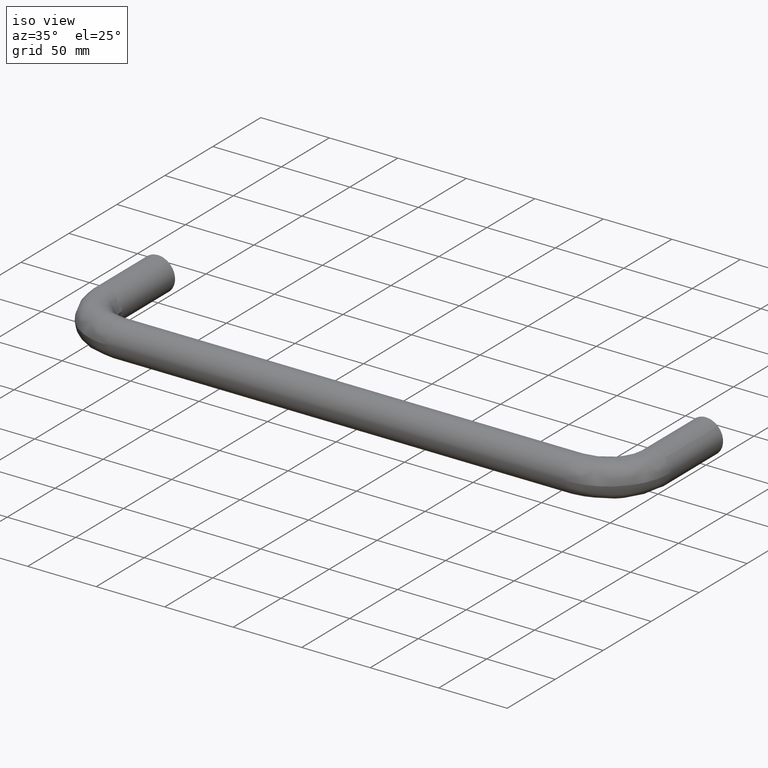
[diagram: clean part render]
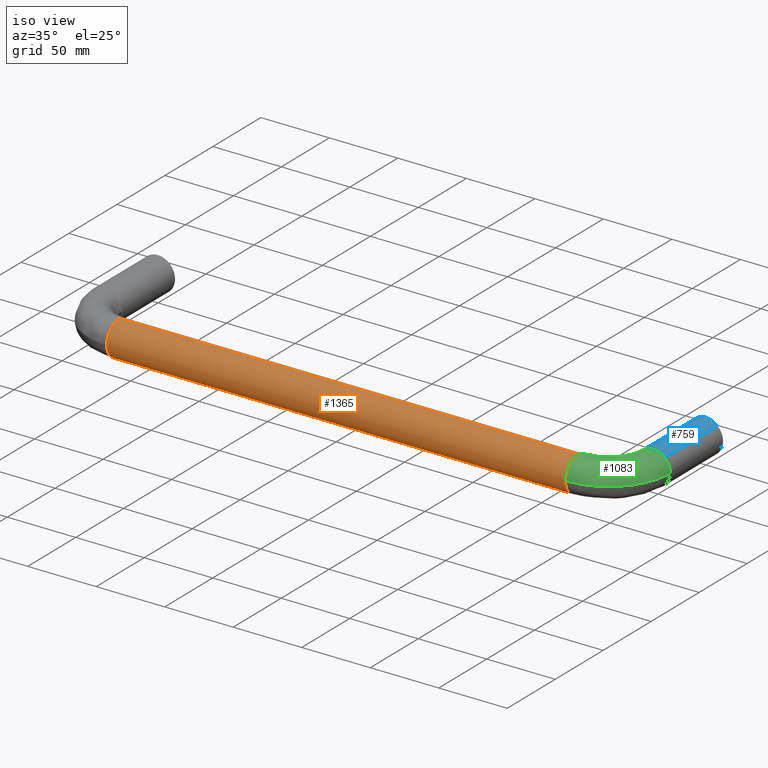
[diagram: same view with three faces highlighted in distinct colors, each labeled with its STEP entity id]
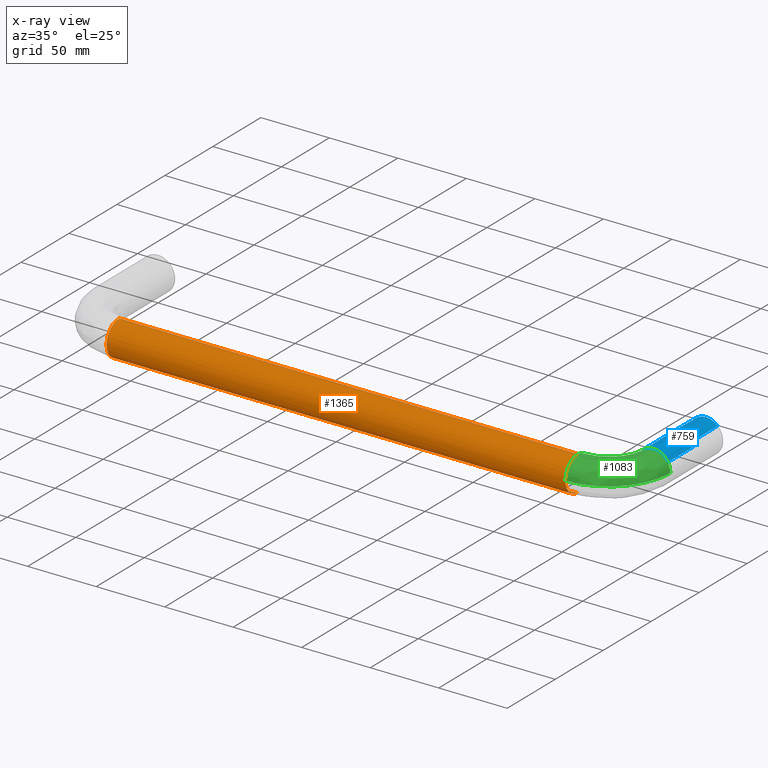
[diagram: x-ray of the same camera — body ghosted, the three highlighted faces saturated]
A machine part, iso view with three faces highlighted in distinct colors.
The next image is the same camera in x-ray (body ghosted, the three faces saturated) — at least one of them is partly hidden behind the body in this view.
Their STEP definitions:

[orange] entity #1365 — the highlighted face is a freeform B-spline surface patch.
#1005=CARTESIAN_POINT('',(367.500000000913420,-99.999999999999972,-1.530758E-015));
#1006=VERTEX_POINT('',#1005);
#1038=CARTESIAN_POINT('',(367.500000000002220,-86.736891903897558,12.476684897586420));
#1039=VERTEX_POINT('',#1038);
#1053=CARTESIAN_POINT('',(367.500000000000000,-87.500000000000000,12.500000000000000));
#1054=VERTEX_POINT('',#1053);
#1055=CARTESIAN_POINT('',(367.500000000002100,-86.736891903897558,12.476684897586491));
#1056=CARTESIAN_POINT('',(367.500000000001020,-87.118089780913948,12.500000000000005));
#1057=CARTESIAN_POINT('',(367.500000000000000,-87.500000000000000,12.500000000000000));
#1065=(BOUNDED_CURVE()B_SPLINE_CURVE(2,(#1055,#1056,#1057),.UNSPECIFIED.,.F.,.U.)B_SPLINE_CURVE_WITH_KNOTS((3,3),(0.985777258060780,1.0),.UNSPECIFIED.)CURVE()GEOMETRIC_REPRESENTATION_ITEM()RATIONAL_B_SPLINE_CURVE((0.976072001603296,0.987502765999206,1.0))REPRESENTATION_ITEM(''));
#1066=EDGE_CURVE('',#1039,#1054,#1065,.T.);
#1068=CARTESIAN_POINT('',(367.500000000000000,-87.500000000000000,12.500000000000000));
#1069=CARTESIAN_POINT('',(367.500000000456620,-99.999999999999986,12.499999999999998));
#1070=CARTESIAN_POINT('',(367.500000000913420,-99.999999999999972,-1.530758E-015));
#1078=(BOUNDED_CURVE()B_SPLINE_CURVE(2,(#1068,#1069,#1070),.UNSPECIFIED.,.F.,.U.)CURVE()GEOMETRIC_REPRESENTATION_ITEM()QUASI_UNIFORM_CURVE()RATIONAL_B_SPLINE_CURVE((1.0,0.707106781186547,1.0))REPRESENTATION_ITEM(''));
#1079=EDGE_CURVE('',#1054,#1006,#1078,.T.);
#1114=CARTESIAN_POINT('',(367.500000000516020,-88.263108096102457,-12.476684897586420));
#1115=VERTEX_POINT('',#1114);
#1116=CARTESIAN_POINT('',(367.500000000913420,-99.999999999999972,-1.530758E-015));
#1117=CARTESIAN_POINT('',(367.500000000913300,-99.999999999999986,-11.758824559807481));
#1118=CARTESIAN_POINT('',(367.500000000516080,-88.263108096102457,-12.476684897586493));
#1126=(BOUNDED_CURVE()B_SPLINE_CURVE(2,(#1116,#1117,#1118),.UNSPECIFIED.,.F.,.U.)B_SPLINE_CURVE_WITH_KNOTS((3,3),(0.0,0.319110591394112),.UNSPECIFIED.)CURVE()GEOMETRIC_REPRESENTATION_ITEM()RATIONAL_B_SPLINE_CURVE((1.0,0.719604015187342,0.976072001603295))REPRESENTATION_ITEM(''));
#1127=EDGE_CURVE('',#1006,#1115,#1126,.T.);
#1285=CARTESIAN_POINT('',(24.124999998774101,-86.736893255814309,12.476684980273340));
#1286=CARTESIAN_POINT('',(24.124999998774104,-99.213578236087642,13.239791724459032));
#1287=CARTESIAN_POINT('',(24.124999998774101,-99.976684980273333,0.763106744185696));
#1288=CARTESIAN_POINT('',(24.124999998774104,-100.739791724459040,-11.713578236087638));
#1289=CARTESIAN_POINT('',(24.124999998774101,-88.263106744185691,-12.476684980273340));
#1290=CARTESIAN_POINT('',(376.084375000966870,-86.736893255814309,12.476684980273340));
#1291=CARTESIAN_POINT('',(376.084375000966870,-99.213578236087642,13.239791724459032));
#1292=CARTESIAN_POINT('',(376.084375000966870,-99.976684980273333,0.763106744185696));
#1293=CARTESIAN_POINT('',(376.084375000966870,-100.739791724459040,-11.713578236087638));
#1294=CARTESIAN_POINT('',(376.084375000966870,-88.263106744185691,-12.476684980273340));
#1302=(BOUNDED_SURFACE()B_SPLINE_SURFACE(2,1,((#1285,#1290),(#1286,#1291),(#1287,#1292),(#1288,#1293),(#1289,#1294)),.UNSPECIFIED.,.F.,.F.,.U.)B_SPLINE_SURFACE_WITH_KNOTS((3,2,3),(2,2),(0.0,20.710678118654752,41.421356237309503),(0.0,351.959375002192810),.UNSPECIFIED.)GEOMETRIC_REPRESENTATION_ITEM()RATIONAL_B_SPLINE_SURFACE(((1.0,1.0),(0.707106781186548,0.707106781186548),(1.0,1.0),(0.707106781186548,0.707106781186548),(1.0,1.0)))REPRESENTATION_ITEM('')SURFACE());
#1303=ORIENTED_EDGE('',*,*,#1066,.F.);
#1304=CARTESIAN_POINT('',(32.499999999963080,-86.736891903897558,12.476684897586420));
#1305=VERTEX_POINT('',#1304);
#1306=CARTESIAN_POINT('',(32.499999999963080,-86.736891903897558,12.476684897586420));
#1307=CARTESIAN_POINT('',(367.500000000002220,-86.736891903897558,12.476684897586420));
#1308=QUASI_UNIFORM_CURVE('',1,(#1306,#1307),.UNSPECIFIED.,.F.,.U.);
#1309=EDGE_CURVE('',#1305,#1039,#1308,.T.);
#1310=ORIENTED_EDGE('',*,*,#1309,.F.);
#1311=CARTESIAN_POINT('',(32.500000000000000,-87.500000000000000,12.500000000000000));
#1312=VERTEX_POINT('',#1311);
#1313=CARTESIAN_POINT('',(32.499999999963066,-86.736891903897558,12.476684897586491));
#1314=CARTESIAN_POINT('',(32.499999999982066,-87.118089780913948,12.500000000000005));
#1315=CARTESIAN_POINT('',(32.500000000000000,-87.500000000000000,12.500000000000000));
#1323=(BOUNDED_CURVE()B_SPLINE_CURVE(2,(#1313,#1314,#1315),.UNSPECIFIED.,.F.,.U.)B_SPLINE_CURVE_WITH_KNOTS((3,3),(0.985777258060780,1.0),.UNSPECIFIED.)CURVE()GEOMETRIC_REPRESENTATION_ITEM()RATIONAL_B_SPLINE_CURVE((0.976072001603296,0.987502765999206,1.0))REPRESENTATION_ITEM(''));
#1324=EDGE_CURVE('',#1305,#1312,#1323,.T.);
#1325=ORIENTED_EDGE('',*,*,#1324,.T.);
#1326=CARTESIAN_POINT('',(32.500032146005097,-99.999999999977035,-1.530758E-015));
#1327=VERTEX_POINT('',#1326);
#1328=CARTESIAN_POINT('',(32.500000000000000,-87.500000000000000,12.500000000000000));
#1329=CARTESIAN_POINT('',(32.500016073002548,-99.999999999988518,12.499999999999998));
#1330=CARTESIAN_POINT('',(32.500032146005097,-99.999999999977035,-1.530758E-015));
#1338=(BOUNDED_CURVE()B_SPLINE_CURVE(2,(#1328,#1329,#1330),.UNSPECIFIED.,.F.,.U.)CURVE()GEOMETRIC_REPRESENTATION_ITEM()QUASI_UNIFORM_CURVE()RATIONAL_B_SPLINE_CURVE((1.0,0.707106781186547,1.0))REPRESENTATION_ITEM(''));
#1339=EDGE_CURVE('',#1312,#1327,#1338,.T.);
#1340=ORIENTED_EDGE('',*,*,#1339,.T.);
#1341=CARTESIAN_POINT('',(32.500017053687827,-88.263108096102428,-12.476684897586050));
#1342=VERTEX_POINT('',#1341);
#1343=CARTESIAN_POINT('',(32.500032146005097,-99.999999999977035,-1.530758E-015));
#1344=CARTESIAN_POINT('',(32.500032146005104,-99.999999999977021,-11.758824559796043));
#1345=CARTESIAN_POINT('',(32.500017053686584,-88.263108096102414,-12.476684897585754));
#1353=(BOUNDED_CURVE()B_SPLINE_CURVE(2,(#1343,#1344,#1345),.UNSPECIFIED.,.F.,.U.)B_SPLINE_CURVE_WITH_KNOTS((3,3),(0.0,0.319110591393889),.UNSPECIFIED.)CURVE()GEOMETRIC_REPRESENTATION_ITEM()RATIONAL_B_SPLINE_CURVE((1.0,0.719604015187538,0.976072001602936))REPRESENTATION_ITEM(''));
#1354=EDGE_CURVE('',#1327,#1342,#1353,.T.);
#1355=ORIENTED_EDGE('',*,*,#1354,.T.);
#1356=CARTESIAN_POINT('',(32.500017053687827,-88.263108096102428,-12.476684897586050));
#1357=CARTESIAN_POINT('',(367.500000000516020,-88.263108096102457,-12.476684897586420));
#1358=QUASI_UNIFORM_CURVE('',1,(#1356,#1357),.UNSPECIFIED.,.F.,.U.);
#1359=EDGE_CURVE('',#1342,#1115,#1358,.T.);
#1360=ORIENTED_EDGE('',*,*,#1359,.T.);
#1361=ORIENTED_EDGE('',*,*,#1127,.F.);
#1362=ORIENTED_EDGE('',*,*,#1079,.F.);
#1363=EDGE_LOOP('',(#1303,#1310,#1325,#1340,#1355,#1360,#1361,#1362));
#1364=FACE_OUTER_BOUND('',#1363,.T.);
#1365=ADVANCED_FACE('',(#1364),#1302,.T.);

[blue] entity #759 — the highlighted face is a freeform B-spline surface patch.
#412=CARTESIAN_POINT('',(400.0,0.0,12.500000000000000));
#413=VERTEX_POINT('',#412);
#414=CARTESIAN_POINT('',(408.604430780848470,-2.886580E-015,9.067180980745007));
#415=VERTEX_POINT('',#414);
#416=CARTESIAN_POINT('',(400.0,0.0,12.500000000000000));
#417=CARTESIAN_POINT('',(404.986993193808300,0.0,12.499999999999995));
#418=CARTESIAN_POINT('',(408.604430780848590,0.0,9.067180980745148));
#426=(BOUNDED_CURVE()B_SPLINE_CURVE(2,(#416,#417,#418),.UNSPECIFIED.,.F.,.U.)B_SPLINE_CURVE_WITH_KNOTS((3,3),(0.0,0.121049503102424),.UNSPECIFIED.)CURVE()GEOMETRIC_REPRESENTATION_ITEM()RATIONAL_B_SPLINE_CURVE((1.0,0.858181685602248,0.853699663113866))REPRESENTATION_ITEM(''));
#427=EDGE_CURVE('',#413,#415,#426,.T.);
#446=CARTESIAN_POINT('',(391.395569219151530,3.330669E-016,-9.067180980744981));
#447=VERTEX_POINT('',#446);
#461=CARTESIAN_POINT('',(391.395569219151410,0.0,-9.067180980745087));
#462=CARTESIAN_POINT('',(387.499999999999890,0.0,-5.370424980244662));
#463=CARTESIAN_POINT('',(387.500000000000000,0.0,0.0));
#464=CARTESIAN_POINT('',(387.499999999999940,0.0,12.499999999999998));
#465=CARTESIAN_POINT('',(400.0,0.0,12.500000000000000));
#473=(BOUNDED_CURVE()B_SPLINE_CURVE(2,(#461,#462,#463,#464,#465),.UNSPECIFIED.,.F.,.U.)B_SPLINE_CURVE_WITH_KNOTS((3,2,3),(0.621049503102425,0.750000000000000,1.0),.UNSPECIFIED.)CURVE()GEOMETRIC_REPRESENTATION_ITEM()RATIONAL_B_SPLINE_CURVE((0.853699663113866,0.848925095584300,1.0,0.707106781186547,1.0))REPRESENTATION_ITEM(''));
#474=EDGE_CURVE('',#447,#413,#473,.T.);
#680=CARTESIAN_POINT('',(391.395567803828100,-56.375000001223910,-9.067179637653593));
#681=CARTESIAN_POINT('',(382.328388166174480,-56.375000001223910,-0.462747441481671));
#682=CARTESIAN_POINT('',(390.932820362346380,-56.375000001223910,8.604432196171922));
#683=CARTESIAN_POINT('',(399.537252558518280,-56.375000001223910,17.671611833825509));
#684=CARTESIAN_POINT('',(408.604432196171900,-56.375000001223910,9.067179637653593));
#685=CARTESIAN_POINT('',(391.395567803828100,1.409375000030593,-9.067179637653593));
#686=CARTESIAN_POINT('',(382.328388166174480,1.409375000030593,-0.462747441481671));
#687=CARTESIAN_POINT('',(390.932820362346380,1.409375000030593,8.604432196171922));
#688=CARTESIAN_POINT('',(399.537252558518280,1.409375000030593,17.671611833825509));
#689=CARTESIAN_POINT('',(408.604432196171900,1.409375000030593,9.067179637653593));
#697=(BOUNDED_SURFACE()B_SPLINE_SURFACE(2,1,((#680,#685),(#681,#686),(#682,#687),(#683,#688),(#684,#689)),.UNSPECIFIED.,.F.,.F.,.U.)B_SPLINE_SURFACE_WITH_KNOTS((3,2,3),(2,2),(0.0,20.710678118654741,41.421356237309489),(0.0,57.784375001254503),.UNSPECIFIED.)GEOMETRIC_REPRESENTATION_ITEM()RATIONAL_B_SPLINE_SURFACE(((1.0,1.0),(0.707106781186548,0.707106781186548),(1.0,1.0),(0.707106781186548,0.707106781186548),(1.0,1.0)))REPRESENTATION_ITEM('')SURFACE());
#698=CARTESIAN_POINT('',(391.395568913528510,-54.999996283961352,-9.067180690720624));
#699=VERTEX_POINT('',#698);
#700=CARTESIAN_POINT('',(387.500000000000000,-55.000000001194060,-8.841173E-016));
#701=VERTEX_POINT('',#700);
#702=CARTESIAN_POINT('',(391.395568913528450,-54.999996283961352,-9.067180690720624));
#703=CARTESIAN_POINT('',(387.500000000000340,-55.000000001155847,-5.370424730694126));
#704=CARTESIAN_POINT('',(387.500000000000000,-55.000000001194060,-8.841173E-016));
#712=(BOUNDED_CURVE()B_SPLINE_CURVE(2,(#702,#703,#704),.UNSPECIFIED.,.F.,.U.)B_SPLINE_CURVE_WITH_KNOTS((3,3),(0.494732677585588,0.666666666666667),.UNSPECIFIED.)CURVE()GEOMETRIC_REPRESENTATION_ITEM()RATIONAL_B_SPLINE_CURVE((0.853699662737177,0.848925101543817,1.0))REPRESENTATION_ITEM(''));
#713=EDGE_CURVE('',#699,#701,#712,.T.);
#714=ORIENTED_EDGE('',*,*,#713,.T.);
#715=CARTESIAN_POINT('',(400.0,-55.0,12.500000000000000));
#716=VERTEX_POINT('',#715);
#717=CARTESIAN_POINT('',(387.500000000000000,-55.000000001194060,-8.841173E-016));
#718=CARTESIAN_POINT('',(387.499999999999940,-55.000000000597026,12.499999999999998));
#719=CARTESIAN_POINT('',(400.0,-55.0,12.500000000000000));
#727=(BOUNDED_CURVE()B_SPLINE_CURVE(2,(#717,#718,#719),.UNSPECIFIED.,.F.,.U.)B_SPLINE_CURVE_WITH_KNOTS((3,3),(0.666666666666667,1.0),.UNSPECIFIED.)CURVE()GEOMETRIC_REPRESENTATION_ITEM()RATIONAL_B_SPLINE_CURVE((1.0,0.707106781186547,1.0))REPRESENTATION_ITEM(''));
#728=EDGE_CURVE('',#701,#716,#727,.T.);
#729=ORIENTED_EDGE('',*,*,#728,.T.);
#730=CARTESIAN_POINT('',(408.604430763588820,-54.999988514614230,9.067180997120886));
#731=VERTEX_POINT('',#730);
#732=CARTESIAN_POINT('',(400.0,-55.0,12.500000000000000));
#733=CARTESIAN_POINT('',(404.986993180019450,-54.999995241641983,12.500000000000721));
#734=CARTESIAN_POINT('',(408.604430763588770,-54.999988514614238,9.067180997120886));
#742=(BOUNDED_CURVE()B_SPLINE_CURVE(2,(#732,#733,#734),.UNSPECIFIED.,.F.,.U.)B_SPLINE_CURVE_WITH_KNOTS((3,3),(0.0,0.484198011260930),.UNSPECIFIED.)CURVE()GEOMETRIC_REPRESENTATION_ITEM()RATIONAL_B_SPLINE_CURVE((1.0,0.858181685938714,0.853699663135133))REPRESENTATION_ITEM(''));
#743=EDGE_CURVE('',#716,#731,#742,.T.);
#744=ORIENTED_EDGE('',*,*,#743,.T.);
#745=CARTESIAN_POINT('',(408.604430763588820,-54.999988514614230,9.067180997120886));
#746=CARTESIAN_POINT('',(408.604430780848470,-2.886580E-015,9.067180980745007));
#747=QUASI_UNIFORM_CURVE('',1,(#745,#746),.UNSPECIFIED.,.F.,.U.);
#748=EDGE_CURVE('',#731,#415,#747,.T.);
#749=ORIENTED_EDGE('',*,*,#748,.T.);
#750=ORIENTED_EDGE('',*,*,#427,.F.);
#751=ORIENTED_EDGE('',*,*,#474,.F.);
#752=CARTESIAN_POINT('',(391.395568913528510,-54.999996283961352,-9.067180690720624));
#753=CARTESIAN_POINT('',(391.395569219151530,3.330669E-016,-9.067180980744981));
#754=QUASI_UNIFORM_CURVE('',1,(#752,#753),.UNSPECIFIED.,.F.,.U.);
#755=EDGE_CURVE('',#699,#447,#754,.T.);
#756=ORIENTED_EDGE('',*,*,#755,.F.);
#757=EDGE_LOOP('',(#714,#729,#744,#749,#750,#751,#756));
#758=FACE_OUTER_BOUND('',#757,.T.);
#759=ADVANCED_FACE('',(#758),#697,.T.);

[green] entity #1083 — the highlighted face is a freeform B-spline surface patch.
#700=CARTESIAN_POINT('',(387.500000000000000,-55.000000001194060,-8.841173E-016));
#701=VERTEX_POINT('',#700);
#715=CARTESIAN_POINT('',(400.0,-55.0,12.500000000000000));
#716=VERTEX_POINT('',#715);
#717=CARTESIAN_POINT('',(387.500000000000000,-55.000000001194060,-8.841173E-016));
#718=CARTESIAN_POINT('',(387.499999999999940,-55.000000000597026,12.499999999999998));
#719=CARTESIAN_POINT('',(400.0,-55.0,12.500000000000000));
#727=(BOUNDED_CURVE()B_SPLINE_CURVE(2,(#717,#718,#719),.UNSPECIFIED.,.F.,.U.)B_SPLINE_CURVE_WITH_KNOTS((3,3),(0.666666666666667,1.0),.UNSPECIFIED.)CURVE()GEOMETRIC_REPRESENTATION_ITEM()RATIONAL_B_SPLINE_CURVE((1.0,0.707106781186547,1.0))REPRESENTATION_ITEM(''));
#728=EDGE_CURVE('',#701,#716,#727,.T.);
#730=CARTESIAN_POINT('',(408.604430763588820,-54.999988514614230,9.067180997120886));
#731=VERTEX_POINT('',#730);
#732=CARTESIAN_POINT('',(400.0,-55.0,12.500000000000000));
#733=CARTESIAN_POINT('',(404.986993180019450,-54.999995241641983,12.500000000000721));
#734=CARTESIAN_POINT('',(408.604430763588770,-54.999988514614238,9.067180997120886));
#742=(BOUNDED_CURVE()B_SPLINE_CURVE(2,(#732,#733,#734),.UNSPECIFIED.,.F.,.U.)B_SPLINE_CURVE_WITH_KNOTS((3,3),(0.0,0.484198011260930),.UNSPECIFIED.)CURVE()GEOMETRIC_REPRESENTATION_ITEM()RATIONAL_B_SPLINE_CURVE((1.0,0.858181685938714,0.853699663135133))REPRESENTATION_ITEM(''));
#743=EDGE_CURVE('',#716,#731,#742,.T.);
#778=CARTESIAN_POINT('',(412.499999999987320,-54.999976146165750,-1.530758E-015));
#779=VERTEX_POINT('',#778);
#799=CARTESIAN_POINT('',(408.604430763588650,-54.999988514614230,9.067180997120886));
#800=CARTESIAN_POINT('',(412.499999999990680,-54.999981270373191,5.370424994334656));
#801=CARTESIAN_POINT('',(412.499999999987320,-54.999976146165750,-1.530758E-015));
#809=(BOUNDED_CURVE()B_SPLINE_CURVE(2,(#799,#800,#801),.UNSPECIFIED.,.F.,.U.)B_SPLINE_CURVE_WITH_KNOTS((3,3),(0.484198011260930,1.0),.UNSPECIFIED.)CURVE()GEOMETRIC_REPRESENTATION_ITEM()RATIONAL_B_SPLINE_CURVE((0.853699663135133,0.848925095247834,1.0))REPRESENTATION_ITEM(''));
#810=EDGE_CURVE('',#731,#779,#809,.T.);
#976=CARTESIAN_POINT('',(364.370829430755290,-99.891071401210425,-0.349459221148228));
#977=CARTESIAN_POINT('',(415.989201187236570,-103.489174201856730,-0.349459221148228));
#978=CARTESIAN_POINT('',(412.391069659745940,-51.870804447812830,-0.349459221148228));
#979=CARTESIAN_POINT('',(364.370829430755290,-99.891071401210411,-0.175747192080917));
#980=CARTESIAN_POINT('',(415.989201187236690,-103.489174201856740,-0.175747192080917));
#981=CARTESIAN_POINT('',(412.391069659745940,-51.870804447812844,-0.175747192080917));
#982=CARTESIAN_POINT('',(364.370829430755290,-99.891071401210439,12.499999999999995));
#983=CARTESIAN_POINT('',(415.989201187236630,-103.489174201856730,12.499999999999995));
#984=CARTESIAN_POINT('',(412.391069659745940,-51.870804447812844,12.499999999999995));
#985=CARTESIAN_POINT('',(365.240043477767760,-87.421329345318640,12.499999999999995));
#986=CARTESIAN_POINT('',(402.519978635226380,-90.019959145785421,12.500000000000000));
#987=CARTESIAN_POINT('',(399.921328087594360,-52.740025434531489,12.499999999999995));
#988=CARTESIAN_POINT('',(366.109257524780110,-74.951587289426854,12.499999999999996));
#989=CARTESIAN_POINT('',(389.050756083216240,-76.550744089714115,12.500000000000000));
#990=CARTESIAN_POINT('',(387.451586515442560,-53.609246421250148,12.499999999999996));
#991=CARTESIAN_POINT('',(366.109257524780390,-74.951587289426854,-0.175747192080917));
#992=CARTESIAN_POINT('',(389.050756083216190,-76.550744089714101,-0.175747192080917));
#993=CARTESIAN_POINT('',(387.451586515442610,-53.609246421250148,-0.175747192080917));
#994=CARTESIAN_POINT('',(366.109257524780220,-74.951587289426854,-0.349459221148230));
#995=CARTESIAN_POINT('',(389.050756083216300,-76.550744089714115,-0.349459221148230));
#996=CARTESIAN_POINT('',(387.451586515442670,-53.609246421250155,-0.349459221148230));
#1004=(BOUNDED_SURFACE()B_SPLINE_SURFACE(2,2,((#976,#979,#982,#985,#988,#991,#994),(#977,#980,#983,#986,#989,#992,#995),(#978,#981,#984,#987,#990,#993,#996)),.UNSPECIFIED.,.F.,.F.,.U.)B_SPLINE_SURFACE_WITH_KNOTS((3,3),(3,1,2,1,3),(0.0,82.006857860211838),(0.0,0.414213562373096,21.124891681027869,41.835569799682652,42.249783362055737),.UNSPECIFIED.)GEOMETRIC_REPRESENTATION_ITEM()RATIONAL_B_SPLINE_SURFACE(((0.927077721827457,0.921709914046686,0.647951717227393,0.916342106265916,0.647951717227393,0.921709914046686,0.927077721827457),(0.608371424908196,0.604848936133702,0.425202008634512,0.601326447359208,0.425202008634512,0.604848936133702,0.608371424908196),(0.927077956886787,0.921710147745015,0.647951881514694,0.916342338603244,0.647951881514694,0.921710147745015,0.927077956886787)))REPRESENTATION_ITEM('')SURFACE());
#1005=CARTESIAN_POINT('',(367.500000000913420,-99.999999999999972,-1.530758E-015));
#1006=VERTEX_POINT('',#1005);
#1007=CARTESIAN_POINT('',(367.500000000913420,-99.999999999999972,-1.530758E-015));
#1008=CARTESIAN_POINT('',(412.500023853837320,-99.999999999086597,-1.530758E-015));
#1009=CARTESIAN_POINT('',(412.499999999987320,-54.999976146165757,-1.530758E-015));
#1017=(BOUNDED_CURVE()B_SPLINE_CURVE(2,(#1007,#1008,#1009),.UNSPECIFIED.,.F.,.U.)B_SPLINE_CURVE_WITH_KNOTS((3,3),(-1.734750791637311,-0.265248657532898),.UNSPECIFIED.)CURVE()GEOMETRIC_REPRESENTATION_ITEM()RATIONAL_B_SPLINE_CURVE((0.889029723568967,0.628638848619577,0.889029918779442))REPRESENTATION_ITEM(''));
#1018=EDGE_CURVE('',#1006,#779,#1017,.T.);
#1019=ORIENTED_EDGE('',*,*,#1018,.T.);
#1020=ORIENTED_EDGE('',*,*,#810,.F.);
#1021=ORIENTED_EDGE('',*,*,#743,.F.);
#1022=ORIENTED_EDGE('',*,*,#728,.F.);
#1023=CARTESIAN_POINT('',(367.500000000067080,-75.0,-8.841173E-016));
#1024=VERTEX_POINT('',#1023);
#1025=CARTESIAN_POINT('',(367.500000000066960,-74.999999999999986,-1.768235E-015));
#1026=CARTESIAN_POINT('',(387.499999998806120,-74.999999999933010,-1.737917E-015));
#1027=CARTESIAN_POINT('',(387.500000000000110,-55.000000001194067,-1.768235E-015));
#1035=(BOUNDED_CURVE()B_SPLINE_CURVE(2,(#1025,#1026,#1027),.UNSPECIFIED.,.F.,.U.)B_SPLINE_CURVE_WITH_KNOTS((3,3),(-1.734750791654919,-0.265249208403636),.UNSPECIFIED.)CURVE()GEOMETRIC_REPRESENTATION_ITEM()RATIONAL_B_SPLINE_CURVE((0.889029723575208,0.628638946228914,0.889029723554456))REPRESENTATION_ITEM(''));
#1036=EDGE_CURVE('',#1024,#701,#1035,.T.);
#1037=ORIENTED_EDGE('',*,*,#1036,.F.);
#1038=CARTESIAN_POINT('',(367.500000000002220,-86.736891903897558,12.476684897586420));
#1039=VERTEX_POINT('',#1038);
#1040=CARTESIAN_POINT('',(367.500000000067080,-75.0,-8.841173E-016));
#1041=CARTESIAN_POINT('',(367.500000000035530,-75.000000000000028,11.758824559807501));
#1042=CARTESIAN_POINT('',(367.500000000002100,-86.736891903897558,12.476684897586491));
#1050=(BOUNDED_CURVE()B_SPLINE_CURVE(2,(#1040,#1041,#1042),.UNSPECIFIED.,.F.,.U.)B_SPLINE_CURVE_WITH_KNOTS((3,3),(0.666666666666667,0.985777258060780),.UNSPECIFIED.)CURVE()GEOMETRIC_REPRESENTATION_ITEM()RATIONAL_B_SPLINE_CURVE((1.0,0.719604015187342,0.976072001603296))REPRESENTATION_ITEM(''));
#1051=EDGE_CURVE('',#1024,#1039,#1050,.T.);
#1052=ORIENTED_EDGE('',*,*,#1051,.T.);
#1053=CARTESIAN_POINT('',(367.500000000000000,-87.500000000000000,12.500000000000000));
#1054=VERTEX_POINT('',#1053);
#1055=CARTESIAN_POINT('',(367.500000000002100,-86.736891903897558,12.476684897586491));
#1056=CARTESIAN_POINT('',(367.500000000001020,-87.118089780913948,12.500000000000005));
#1057=CARTESIAN_POINT('',(367.500000000000000,-87.500000000000000,12.500000000000000));
#1065=(BOUNDED_CURVE()B_SPLINE_CURVE(2,(#1055,#1056,#1057),.UNSPECIFIED.,.F.,.U.)B_SPLINE_CURVE_WITH_KNOTS((3,3),(0.985777258060780,1.0),.UNSPECIFIED.)CURVE()GEOMETRIC_REPRESENTATION_ITEM()RATIONAL_B_SPLINE_CURVE((0.976072001603296,0.987502765999206,1.0))REPRESENTATION_ITEM(''));
#1066=EDGE_CURVE('',#1039,#1054,#1065,.T.);
#1067=ORIENTED_EDGE('',*,*,#1066,.T.);
#1068=CARTESIAN_POINT('',(367.500000000000000,-87.500000000000000,12.500000000000000));
#1069=CARTESIAN_POINT('',(367.500000000456620,-99.999999999999986,12.499999999999998));
#1070=CARTESIAN_POINT('',(367.500000000913420,-99.999999999999972,-1.530758E-015));
#1078=(BOUNDED_CURVE()B_SPLINE_CURVE(2,(#1068,#1069,#1070),.UNSPECIFIED.,.F.,.U.)CURVE()GEOMETRIC_REPRESENTATION_ITEM()QUASI_UNIFORM_CURVE()RATIONAL_B_SPLINE_CURVE((1.0,0.707106781186547,1.0))REPRESENTATION_ITEM(''));
#1079=EDGE_CURVE('',#1054,#1006,#1078,.T.);
#1080=ORIENTED_EDGE('',*,*,#1079,.T.);
#1081=EDGE_LOOP('',(#1019,#1020,#1021,#1022,#1037,#1052,#1067,#1080));
#1082=FACE_OUTER_BOUND('',#1081,.T.);
#1083=ADVANCED_FACE('',(#1082),#1004,.T.);